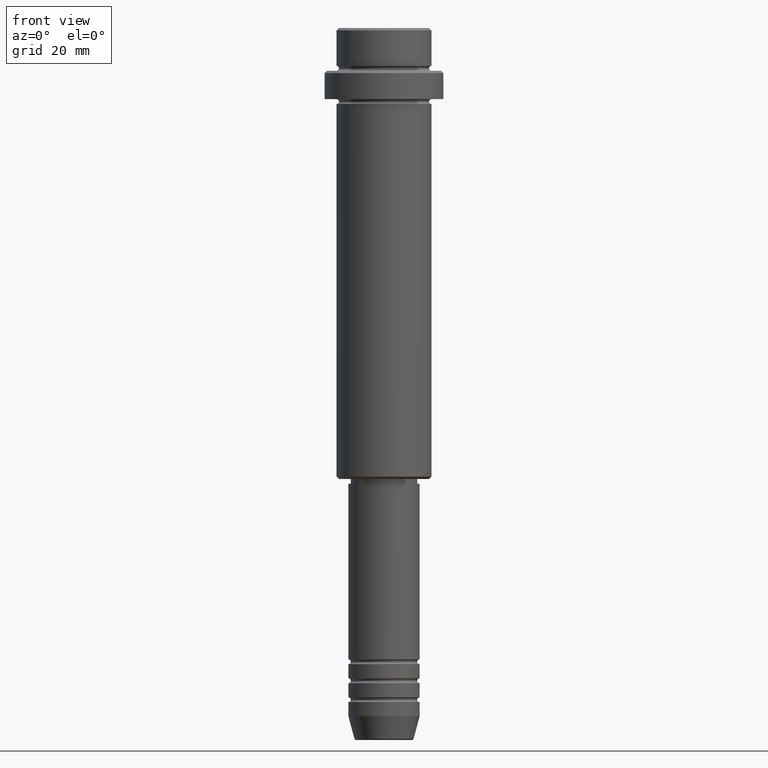
[diagram: clean part render]
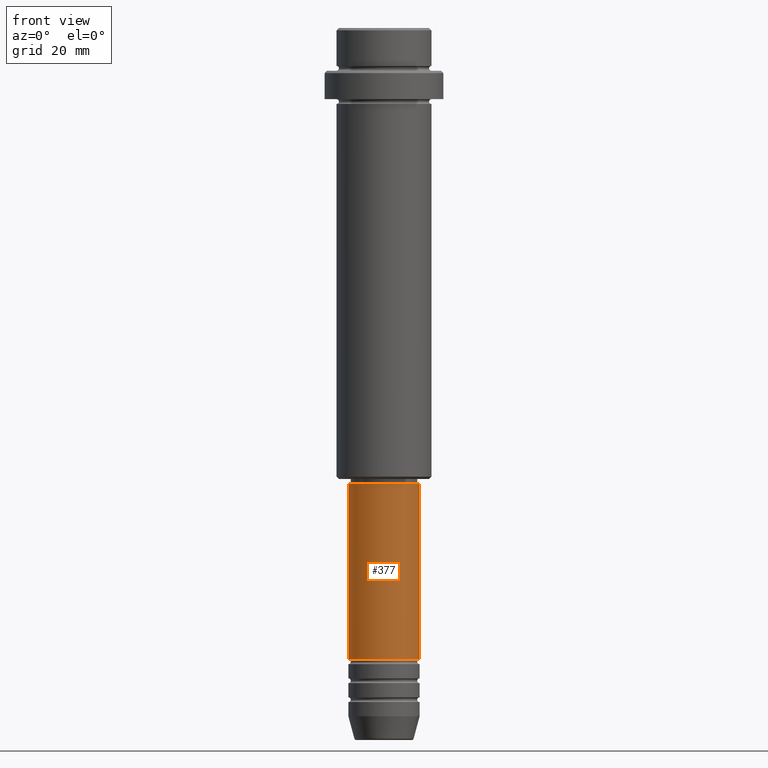
[diagram: same view with one face highlighted and labeled with its STEP entity id]
A machine part, front view. The second image highlights one B-rep face of the part: STEP entity #377.
In plain terms, the highlighted cylindrical surface (edge-blend (fillet) strip) has radius 7.5 mm, axis along (-0, -0, 1).
Its self-contained STEP definition (entity closure, byte-faithful):
#34 = CARTESIAN_POINT ( 'NONE',  ( 0.000000000000000000, 0.000000000000000000, 0.000000000000000000 ) ) ;
#194 = VERTEX_POINT ( 'NONE', #342 ) ;
#252 = VECTOR ( 'NONE', #686, 1000.000000000000000 ) ;
#257 = LINE ( 'NONE', #1011, #252 ) ;
#280 = DIRECTION ( 'NONE',  ( 1.000000000000000000, 0.000000000000000000, 0.000000000000000000 ) ) ;
#342 = CARTESIAN_POINT ( 'NONE',  ( 7.500000000000000000, 0.000000000000000000, -132.9999999999998579 ) ) ;
#377 = ADVANCED_FACE ( 'NONE', ( #1342 ), #1258, .T. ) ;
#396 = CARTESIAN_POINT ( 'NONE',  ( -7.500000000000000000, 9.184850993605147944E-16, -132.9999999999998579 ) ) ;
#440 = EDGE_CURVE ( 'NONE', #1414, #444, #733, .T. ) ;
#444 = VERTEX_POINT ( 'NONE', #1402 ) ;
#585 = EDGE_CURVE ( 'NONE', #913, #1414, #983, .T. ) ;
#592 = EDGE_LOOP ( 'NONE', ( #1298, #1279, #1180, #605 ) ) ;
#593 = DIRECTION ( 'NONE',  ( -0.000000000000000000, -0.000000000000000000, 1.000000000000000000 ) ) ;
#605 = ORIENTED_EDGE ( 'NONE', *, *, #440, .F. ) ;
#633 = CARTESIAN_POINT ( 'NONE',  ( 0.000000000000000000, 0.000000000000000000, -96.00000000000000000 ) ) ;
#659 = DIRECTION ( 'NONE',  ( -0.000000000000000000, -0.000000000000000000, 1.000000000000000000 ) ) ;
#669 = CIRCLE ( 'NONE', #689, 7.500000000000000000 ) ;
#686 = DIRECTION ( 'NONE',  ( -0.000000000000000000, -0.000000000000000000, 1.000000000000000000 ) ) ;
#689 = AXIS2_PLACEMENT_3D ( 'NONE', #1340, #783, #791 ) ;
#695 = DIRECTION ( 'NONE',  ( 1.000000000000000000, 0.000000000000000000, 0.000000000000000000 ) ) ;
#727 = EDGE_CURVE ( 'NONE', #194, #444, #257, .T. ) ;
#733 = CIRCLE ( 'NONE', #989, 7.500000000000000000 ) ;
#770 = EDGE_CURVE ( 'NONE', #913, #194, #669, .T. ) ;
#783 = DIRECTION ( 'NONE',  ( -0.000000000000000000, -0.000000000000000000, 1.000000000000000000 ) ) ;
#791 = DIRECTION ( 'NONE',  ( 1.000000000000000000, 0.000000000000000000, 0.000000000000000000 ) ) ;
#828 = AXIS2_PLACEMENT_3D ( 'NONE', #34, #593, #695 ) ;
#913 = VERTEX_POINT ( 'NONE', #396 ) ;
#983 = LINE ( 'NONE', #1416, #1012 ) ;
#989 = AXIS2_PLACEMENT_3D ( 'NONE', #633, #1381, #280 ) ;
#1011 = CARTESIAN_POINT ( 'NONE',  ( 7.500000000000000000, 0.000000000000000000, 0.000000000000000000 ) ) ;
#1012 = VECTOR ( 'NONE', #659, 1000.000000000000000 ) ;
#1180 = ORIENTED_EDGE ( 'NONE', *, *, #727, .T. ) ;
#1258 = CYLINDRICAL_SURFACE ( 'NONE', #828, 7.500000000000000000 ) ;
#1259 = CARTESIAN_POINT ( 'NONE',  ( -7.500000000000000000, 9.184850993605147944E-16, -96.00000000000000000 ) ) ;
#1279 = ORIENTED_EDGE ( 'NONE', *, *, #770, .T. ) ;
#1298 = ORIENTED_EDGE ( 'NONE', *, *, #585, .F. ) ;
#1340 = CARTESIAN_POINT ( 'NONE',  ( 0.000000000000000000, 0.000000000000000000, -132.9999999999998579 ) ) ;
#1342 = FACE_OUTER_BOUND ( 'NONE', #592, .T. ) ;
#1381 = DIRECTION ( 'NONE',  ( -0.000000000000000000, -0.000000000000000000, 1.000000000000000000 ) ) ;
#1402 = CARTESIAN_POINT ( 'NONE',  ( 7.500000000000000000, 0.000000000000000000, -96.00000000000000000 ) ) ;
#1414 = VERTEX_POINT ( 'NONE', #1259 ) ;
#1416 = CARTESIAN_POINT ( 'NONE',  ( -7.500000000000000000, 9.184850993605147944E-16, 0.000000000000000000 ) ) ;